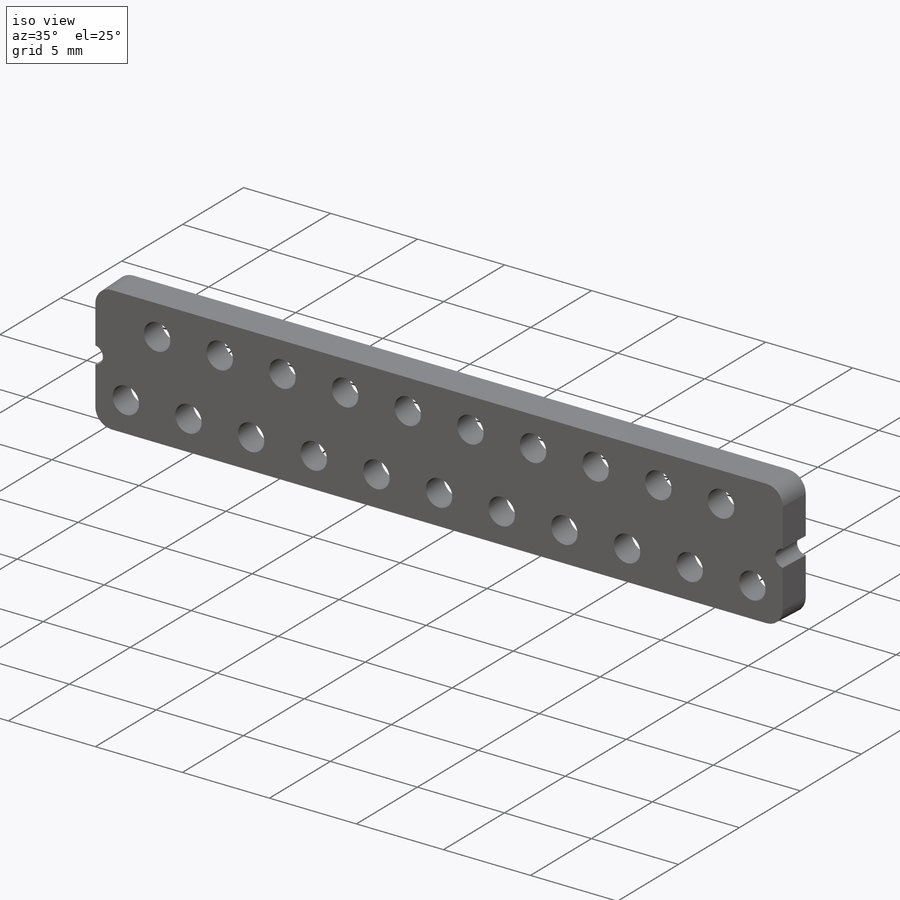
[diagram: iso view]
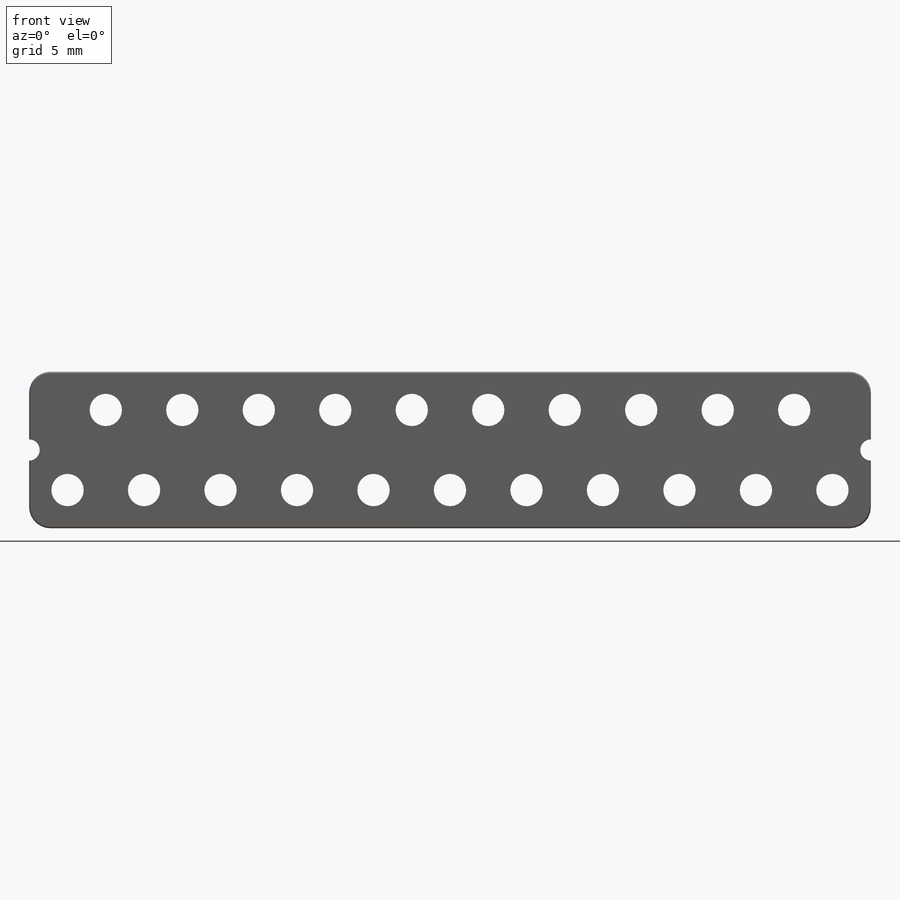
[diagram: front view]
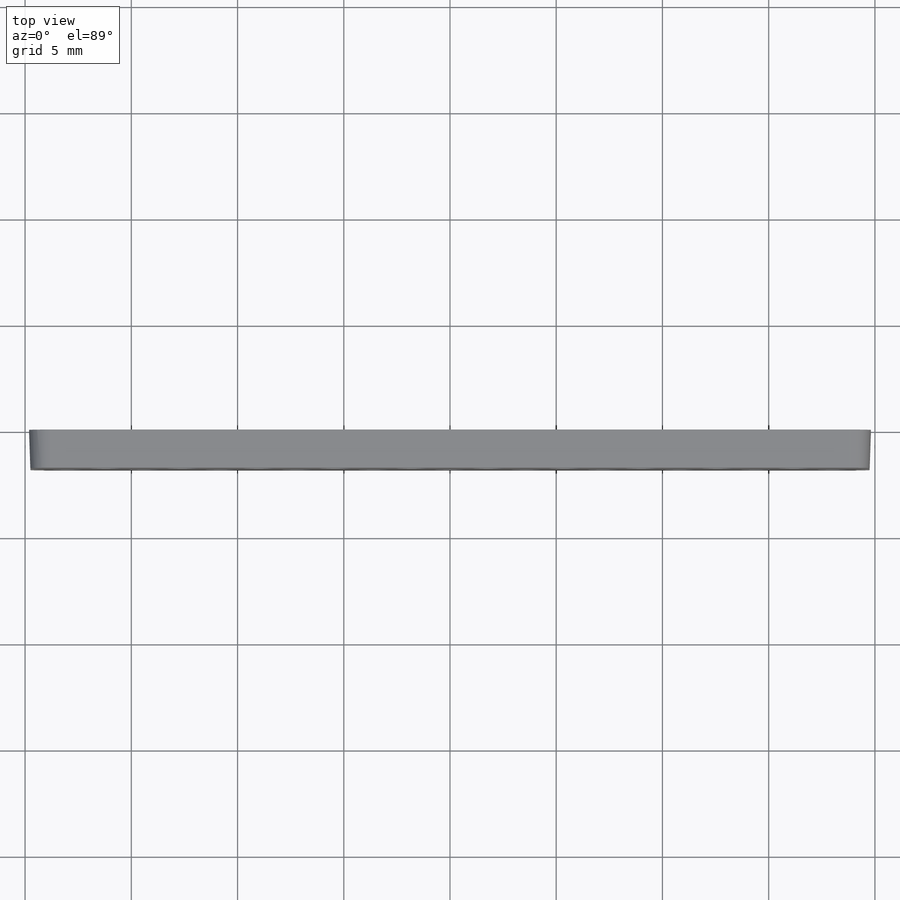
[diagram: top view]
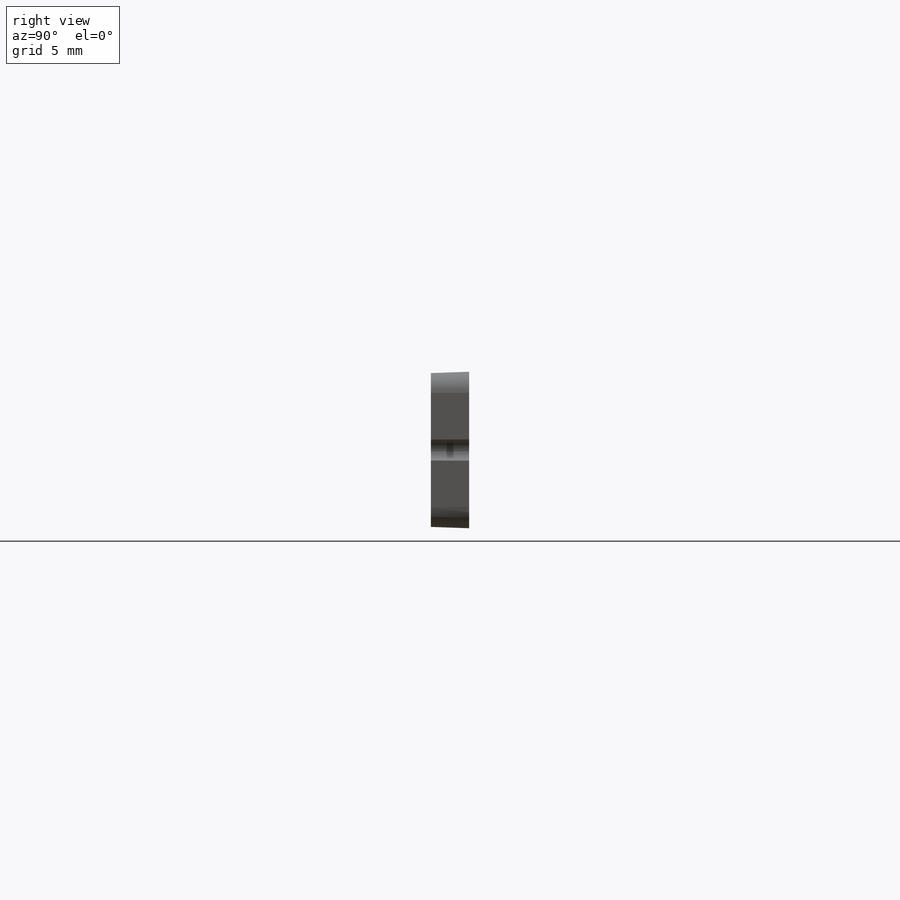
[diagram: right view]
SOLIDWORKS PART (.sldprt)
format: sldprt  version: not decoded by parser v0  size: 448,512 bytes
history: native  units: mm
features: sketch x4, cut_extrude x3, material x1, extrude x1 + 1 further entry (+12 scaffold rows collapsed)
feature tree (22):
  scaffold x12  (default folders/planes/origin — collapsed)
  material  "Material <not specified>"
  "Annotations"  RD2=39.624mm RD1=1.491746mm RD3=7.366mm RD4=7.366mm RD5=39.624mm RD6=1.6mm RD7=2.41mm RD8=3.6mm RD9=1.8mm RD10=0.5mm
  sketch  "Sketch11"  dims[D1=1.0mm]
  extrude  "Boss-Extrude1"  Depth=1.8mm
  sketch  "Sketch10"  dims[D1=~3.623062mm]
  cut_extrude  "Cut-Extrude2"  Depth=0.25mm
  sketch  "Sketch9"  dims[D1=~3.623062mm]
  cut_extrude  "Cut-Extrude3"  [1 undecoded]
  sketch  "Sketch12"  dims[D1=1.0mm]
  cut_extrude  "Cut-Extrude4"  [1 undecoded]
decode coverage: 6 of 8 modeling features carry decoded parameters; 1 rows unclassified (native names shown)
note: ~ marks probable driven/reference dimensions
note: 2 parameter values undecoded
note: suppression state not decoded; provenance and decode notes live in map.json
